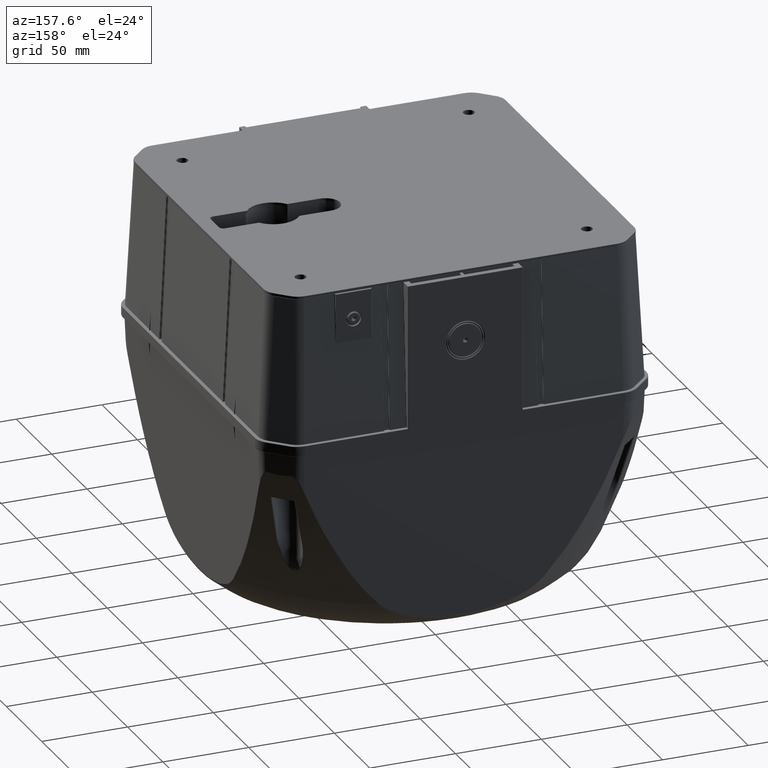
[diagram: clean part render]
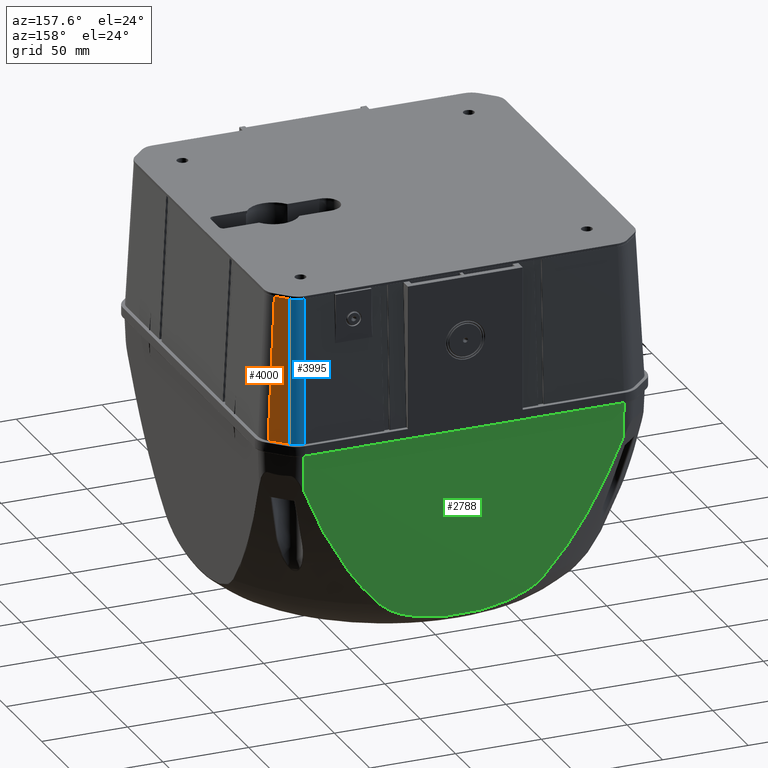
[diagram: same view with three faces highlighted in distinct colors, each labeled with its STEP entity id]
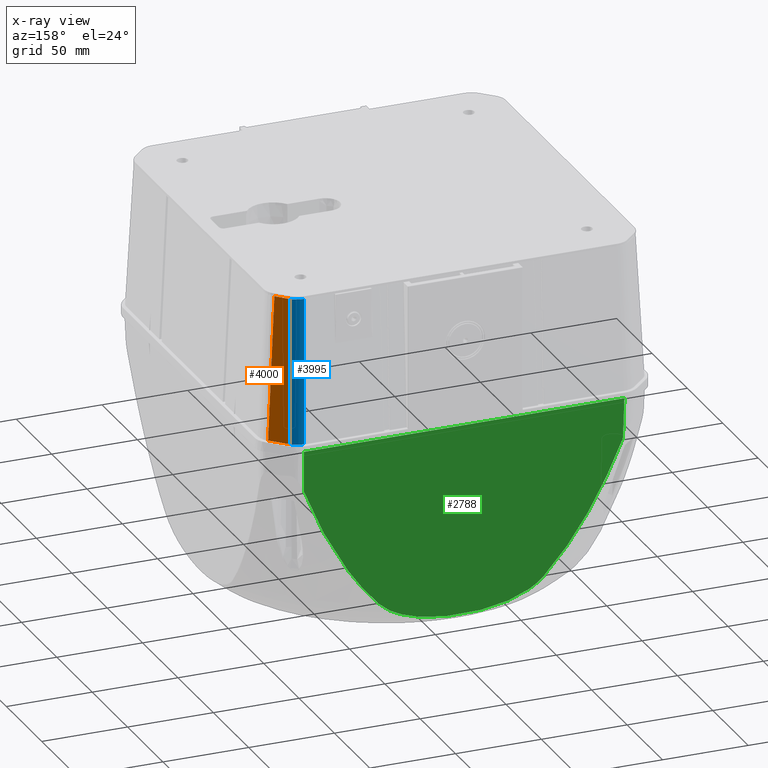
[diagram: x-ray of the same camera — body ghosted, the three highlighted faces saturated]
A machine part, auxiliary view with three faces highlighted in distinct colors.
The next image is the same camera in x-ray (body ghosted, the three faces saturated) — at least one of them is partly hidden behind the body in this view.
Their STEP definitions:

[orange] entity #4000 — the highlighted planar face has unit normal (0.7061, 0.7061, 0.0523).
#2599=FACE_OUTER_BOUND('',#6148,.T.);
#4000=ADVANCED_FACE('',(#2599),#4424,.T.);
#4424=PLANE('',#23827);
#6148=EDGE_LOOP('',(#14075,#14076,#14077,#14078));
#6780=LINE('',#38961,#8007);
#7159=LINE('',#43314,#8386);
#7480=LINE('',#46927,#8707);
#7481=LINE('',#46929,#8708);
#8007=VECTOR('',#26422,1.);
#8386=VECTOR('',#28217,1.);
#8707=VECTOR('',#29898,1.);
#8708=VECTOR('',#29901,1.);
#14075=ORIENTED_EDGE('',*,*,#19904,.T.);
#14076=ORIENTED_EDGE('',*,*,#18330,.T.);
#14077=ORIENTED_EDGE('',*,*,#19905,.T.);
#14078=ORIENTED_EDGE('',*,*,#19207,.T.);
#16120=VERTEX_POINT('',#38814);
#16129=VERTEX_POINT('',#38958);
#16614=VERTEX_POINT('',#43275);
#16618=VERTEX_POINT('',#43313);
#18330=EDGE_CURVE('',#16129,#16120,#6780,.T.);
#19207=EDGE_CURVE('',#16614,#16618,#7159,.T.);
#19904=EDGE_CURVE('',#16618,#16129,#7480,.T.);
#19905=EDGE_CURVE('',#16120,#16614,#7481,.T.);
#23827=AXIS2_PLACEMENT_3D('',#46939,#29915,#29916);
#26422=DIRECTION('',(0.707106781186548,-0.707106781186547,0.));
#28217=DIRECTION('',(-0.707106781186548,0.707106781186547,0.));
#29898=DIRECTION('',(0.0523236630107089,0.0216731708520751,-0.998394965909964));
#29901=DIRECTION('',(-0.021673170852075,-0.0523236630107089,0.998394965909964));
#29915=DIRECTION('',(-0.706137715918126,-0.706137715918127,-0.0523359562429438));
#29916=DIRECTION('',(0.707106781186548,-0.707106781186547,0.));
#38814=CARTESIAN_POINT('',(-326.875311403272,-104.86831466977,0.189532808751405));
#38958=CARTESIAN_POINT('',(-333.26831466977,-98.4753114032717,0.189532808751405));
#38961=CARTESIAN_POINT('',(-330.071813036521,-101.671813036521,0.189532808751405));
#43275=CARTESIAN_POINT('',(-328.689527134813,-109.248218893927,83.7630839890607));
#43313=CARTESIAN_POINT('',(-337.648218893927,-100.289527134813,83.7630839890607));
#43314=CARTESIAN_POINT('',(-333.16887301437,-104.76887301437,83.7630839890607));
#46927=CARTESIAN_POINT('',(-337.967744542376,-100.421878991926,89.859996562345));
#46929=CARTESIAN_POINT('',(-328.821878991926,-109.567744542376,89.859996562345));
#46939=CARTESIAN_POINT('',(-333.4,-105.,90.));

[blue] entity #3995 — the highlighted cylindrical surface (edge-blend (fillet) strip) has radius 10 mm, axis along (0.0217, 0.0523, -0.9984).
#615=CYLINDRICAL_SURFACE('',#23822,10.);
#1237=ELLIPSE('',#22439,10.0154400190644,10.);
#1436=ELLIPSE('',#23144,10.0168893122903,10.);
#2594=FACE_OUTER_BOUND('',#6143,.T.);
#3995=ADVANCED_FACE('',(#2594),#615,.T.);
#6143=EDGE_LOOP('',(#14055,#14056,#14057,#14058));
#7479=LINE('',#46926,#8706);
#7480=LINE('',#46927,#8707);
#8706=VECTOR('',#29897,1.);
#8707=VECTOR('',#29898,1.);
#14055=ORIENTED_EDGE('',*,*,#19903,.F.);
#14056=ORIENTED_EDGE('',*,*,#18336,.T.);
#14057=ORIENTED_EDGE('',*,*,#19904,.F.);
#14058=ORIENTED_EDGE('',*,*,#19210,.T.);
#16129=VERTEX_POINT('',#38958);
#16133=VERTEX_POINT('',#38970);
#16618=VERTEX_POINT('',#43313);
#16620=VERTEX_POINT('',#43319);
#18336=EDGE_CURVE('',#16133,#16129,#1237,.T.);
#19210=EDGE_CURVE('',#16618,#16620,#1436,.T.);
#19903=EDGE_CURVE('',#16133,#16620,#7479,.T.);
#19904=EDGE_CURVE('',#16618,#16129,#7480,.T.);
#22439=AXIS2_PLACEMENT_3D('',#38973,#26435,#26436);
#23144=AXIS2_PLACEMENT_3D('',#43320,#28223,#28224);
#23822=AXIS2_PLACEMENT_3D('',#46928,#29899,#29900);
#26435=DIRECTION('',(-0.00104485999439089,-0.000432795180457782,0.999999360477757));
#26436=DIRECTION('',(-0.923878941669776,-0.382683187630523,-0.00113094830832625));
#28223=DIRECTION('',(-0.0013058860235804,-0.000540915701880473,-0.999999001035449));
#28224=DIRECTION('',(-0.923878609588385,-0.382683050077906,0.00141348084639427));
#29897=DIRECTION('',(-0.0523236630107089,-0.0216731708520751,0.998394965909964));
#29898=DIRECTION('',(0.0523236630107089,0.0216731708520751,-0.998394965909964));
#29899=DIRECTION('',(-0.0523236630107089,-0.0216731708520751,0.998394965909964));
#29900=DIRECTION('',(0.998629534754575,0.,0.0523359562429437));
#38958=CARTESIAN_POINT('',(-333.26831466977,-98.4753114032717,0.189532808751405));
#38970=CARTESIAN_POINT('',(-336.193232858134,-91.4139342440904,0.189532808751391));
#38973=CARTESIAN_POINT('',(-326.180057960404,-91.4028003698534,0.200000000000006));
#43313=CARTESIAN_POINT('',(-337.648218893927,-100.289527134813,83.7630839890607));
#43319=CARTESIAN_POINT('',(-340.573137082292,-93.2281499756317,83.7630839890607));
#43320=CARTESIAN_POINT('',(-330.558727919502,-93.2165048520674,83.75));
#46926=CARTESIAN_POINT('',(-340.794123906328,-93.3196857152532,87.979763784682));
#46927=CARTESIAN_POINT('',(-337.967744542376,-100.421878991926,89.859996562345));
#46928=CARTESIAN_POINT('',(-330.807828558782,-93.3196857152532,88.5031233471115));

[green] entity #2788 — the highlighted planar face has unit normal (0, 0.999, -0.0436).
#1469=FACE_OUTER_BOUND('',#4856,.T.);
#2788=ADVANCED_FACE('',(#1469),#4230,.T.);
#4230=PLANE('',#21497);
#4856=EDGE_LOOP('',(#9315,#9316,#9317,#9318,#9319,#9320));
#6466=LINE('',#31110,#7693);
#6467=LINE('',#31113,#7694);
#6468=LINE('',#31115,#7695);
#7693=VECTOR('',#24234,1.);
#7694=VECTOR('',#24235,1.);
#7695=VECTOR('',#24236,1.);
#8906=B_SPLINE_CURVE_WITH_KNOTS('',3,(#31117,#31118,#31119,#31120,#31121,
#31122,#31123,#31124,#31125,#31126,#31127,#31128,#31129,#31130,#31131,#31132),
 .UNSPECIFIED.,.F.,.F.,(4,2,2,2,2,2,2,4),(0.,0.25,0.500000000000001,0.625000000000001,
0.750000000000001,0.812500000000001,0.875000000000001,1.),.UNSPECIFIED.);
#8907=B_SPLINE_CURVE_WITH_KNOTS('',3,(#31134,#31135,#31136,#31137,#31138,
#31139,#31140,#31141,#31142,#31143,#31144,#31145,#31146,#31147,#31148,#31149,
#31150,#31151,#31152,#31153,#31154,#31155,#31156,#31157,#31158,#31159,#31160,
#31161,#31162,#31163,#31164,#31165,#31166,#31167,#31168,#31169,#31170,#31171,
#31172,#31173),.UNSPECIFIED.,.F.,.F.,(4,2,2,2,2,2,2,2,2,2,2,2,2,2,2,2,2,
2,2,4),(0.,0.0625000000000001,0.125,0.15625,0.1875,0.25,0.3125,0.34375,0.375,
0.4375,0.5,0.5625,0.625,0.6875,0.75,0.8125,0.875,0.90625,0.9375,1.),.UNSPECIFIED.);
#8908=B_SPLINE_CURVE_WITH_KNOTS('',3,(#31175,#31176,#31177,#31178,#31179,
#31180,#31181,#31182,#31183,#31184,#31185,#31186,#31187,#31188,#31189,#31190),
 .UNSPECIFIED.,.F.,.F.,(4,2,2,2,2,2,2,4),(0.,0.125,0.25,0.375,0.5,0.625,
0.75,1.),.UNSPECIFIED.);
#9315=ORIENTED_EDGE('',*,*,#17264,.T.);
#9316=ORIENTED_EDGE('',*,*,#17265,.T.);
#9317=ORIENTED_EDGE('',*,*,#17266,.T.);
#9318=ORIENTED_EDGE('',*,*,#17267,.T.);
#9319=ORIENTED_EDGE('',*,*,#17268,.T.);
#9320=ORIENTED_EDGE('',*,*,#17269,.T.);
#15473=VERTEX_POINT('',#31111);
#15474=VERTEX_POINT('',#31112);
#15475=VERTEX_POINT('',#31114);
#15476=VERTEX_POINT('',#31116);
#15477=VERTEX_POINT('',#31133);
#15478=VERTEX_POINT('',#31174);
#17264=EDGE_CURVE('',#15473,#15474,#6466,.T.);
#17265=EDGE_CURVE('',#15474,#15475,#6467,.T.);
#17266=EDGE_CURVE('',#15475,#15476,#6468,.T.);
#17267=EDGE_CURVE('',#15476,#15477,#8906,.T.);
#17268=EDGE_CURVE('',#15477,#15478,#8907,.T.);
#17269=EDGE_CURVE('',#15478,#15473,#8908,.T.);
#21497=AXIS2_PLACEMENT_3D('',#31191,#24237,#24238);
#24234=DIRECTION('',(-0.0436122694797137,0.0180647935043676,-0.998885195198364));
#24235=DIRECTION('',(1.1049345174485E-016,-1.,-2.94649204652927E-016));
#24236=DIRECTION('',(0.0436122694797137,0.0180647935043676,0.998885195198364));
#24237=DIRECTION('',(-0.999048221581858,-1.23240704256777E-016,0.043619387365336));
#24238=DIRECTION('',(0.043619387365336,0.,0.999048221581858));
#31110=CARTESIAN_POINT('',(-340.903260261641,93.3631572161492,89.1253277317557));
#31111=CARTESIAN_POINT('',(-339.89924122237,92.9472789132023,112.121144413379));
#31112=CARTESIAN_POINT('',(-340.946923152946,93.3723822039676,88.1251932025113));
#31113=CARTESIAN_POINT('',(-340.946929202835,-7.11830372997009E-014,88.1251445408932));
#31114=CARTESIAN_POINT('',(-340.94692292548,-93.3723821096888,88.1251984123264));
#31115=CARTESIAN_POINT('',(-340.362453506361,-93.1391477234896,101.511838861684));
#31116=CARTESIAN_POINT('',(-339.89924122237,-92.9472789132025,112.121144413379));
#31117=CARTESIAN_POINT('',(-339.89924122237,-92.9472789132025,112.121144413379));
#31118=CARTESIAN_POINT('',(-339.599000147905,-90.259399345371,118.997795590927));
#31119=CARTESIAN_POINT('',(-339.30398885532,-87.3569871596256,125.754665070424));
#31120=CARTESIAN_POINT('',(-338.725648176197,-81.0729554437888,139.000844392184));
#31121=CARTESIAN_POINT('',(-338.442295286538,-77.6923000429925,145.490692544403));
#31122=CARTESIAN_POINT('',(-338.027723054926,-72.1923526546859,154.985957740127));
#31123=CARTESIAN_POINT('',(-337.891285201999,-70.2871309375533,158.110898335516));
#31124=CARTESIAN_POINT('',(-337.622389087864,-66.3134393507308,164.269631890531));
#31125=CARTESIAN_POINT('',(-337.489927533544,-64.2451045689544,167.303500274864));
#31126=CARTESIAN_POINT('',(-337.294729838752,-60.999247745086,171.774262511988));
#31127=CARTESIAN_POINT('',(-337.230248306574,-59.8933239953274,173.251132407195));
#31128=CARTESIAN_POINT('',(-337.102569909403,-57.6287777369345,176.175448481606));
#31129=CARTESIAN_POINT('',(-337.039306510832,-56.4688941816599,177.624418530258));
#31130=CARTESIAN_POINT('',(-336.852139014911,-52.9105405974089,181.911258975125));
#31131=CARTESIAN_POINT('',(-336.73115470018,-50.4404335498183,184.682255354757));
#31132=CARTESIAN_POINT('',(-336.614819399235,-47.8503994507775,187.346771812602));
#31133=CARTESIAN_POINT('',(-336.614819399235,-47.8503994507774,187.346771812602));
#31134=CARTESIAN_POINT('',(-336.614819399235,-47.8503994507774,187.346771812602));
#31135=CARTESIAN_POINT('',(-336.546855755252,-46.3372890364596,188.903395180218));
#31136=CARTESIAN_POINT('',(-336.488096355642,-44.6825387209352,190.249206692653));
#31137=CARTESIAN_POINT('',(-336.383393816497,-41.1758145333086,192.647289101547));
#31138=CARTESIAN_POINT('',(-336.337541210831,-39.322447476967,193.697486431506));
#31139=CARTESIAN_POINT('',(-336.276378750283,-36.4251908632022,195.098337088271));
#31140=CARTESIAN_POINT('',(-336.257248089191,-35.437751966743,195.536501264701));
#31141=CARTESIAN_POINT('',(-336.221747852733,-33.4533838654618,196.349590357445));
#31142=CARTESIAN_POINT('',(-336.205307572217,-32.4533764913775,196.726134687937));
#31143=CARTESIAN_POINT('',(-336.15940658063,-29.4329284857367,197.777440237679));
#31144=CARTESIAN_POINT('',(-336.133340770127,-27.3922109871002,198.374445450272));
#31145=CARTESIAN_POINT('',(-336.088420312545,-23.2677055671938,199.403293079061));
#31146=CARTESIAN_POINT('',(-336.069577495348,-21.1838469890834,199.834864546411));
#31147=CARTESIAN_POINT('',(-336.045867985299,-18.0308549773668,200.377901605842));
#31148=CARTESIAN_POINT('',(-336.038728253981,-16.9752978173307,200.541428338037));
#31149=CARTESIAN_POINT('',(-336.025875397925,-14.8556627434277,200.83580713977));
#31150=CARTESIAN_POINT('',(-336.020158951289,-13.7904918549232,200.966735293285));
#31151=CARTESIAN_POINT('',(-336.005114318098,-10.6015155023864,201.311314044663));
#31152=CARTESIAN_POINT('',(-335.997838125312,-8.47869415229776,201.477966258304));
#31153=CARTESIAN_POINT('',(-335.988199704369,-4.23869588681379,201.698722391843));
#31154=CARTESIAN_POINT('',(-335.985839908289,-2.12152176502885,201.752770608008));
#31155=CARTESIAN_POINT('',(-335.985829373285,2.10741741119839,201.75301189926));
#31156=CARTESIAN_POINT('',(-335.988179080524,4.21918195315602,201.69919475556));
#31157=CARTESIAN_POINT('',(-335.997720291099,8.4371494988945,201.48066510549));
#31158=CARTESIAN_POINT('',(-336.004910471768,10.5433540219611,201.315982893211));
#31159=CARTESIAN_POINT('',(-336.024616077838,14.7496462157349,200.86465031178));
#31160=CARTESIAN_POINT('',(-336.037127565235,16.8497384098401,200.578090137795));
#31161=CARTESIAN_POINT('',(-336.068384231436,21.0427624567121,199.862194783286));
#31162=CARTESIAN_POINT('',(-336.087120043268,23.1357050688711,199.433074141736));
#31163=CARTESIAN_POINT('',(-336.132344074934,27.3126854751844,198.397273523296));
#31164=CARTESIAN_POINT('',(-336.158555125415,29.3706416232251,197.796941768303));
#31165=CARTESIAN_POINT('',(-336.219738659974,33.4090779386026,196.395608437341));
#31166=CARTESIAN_POINT('',(-336.254693881259,35.3901648334007,195.595002244336));
#31167=CARTESIAN_POINT('',(-336.315616953941,38.2876008328152,194.199634471144));
#31168=CARTESIAN_POINT('',(-336.337396548696,39.2428576149346,193.700799739134));
#31169=CARTESIAN_POINT('',(-336.384092818594,41.1157554902547,192.631279321409));
#31170=CARTESIAN_POINT('',(-336.408861736435,42.027729658256,192.063977834275));
#31171=CARTESIAN_POINT('',(-336.487980607149,44.6807574002577,190.251857768996));
#31172=CARTESIAN_POINT('',(-336.547022121496,46.3409929358133,188.89958476676));
#31173=CARTESIAN_POINT('',(-336.614819399235,47.850399450777,187.346771812603));
#31174=CARTESIAN_POINT('',(-336.614819399235,47.850399450777,187.346771812603));
#31175=CARTESIAN_POINT('',(-336.614819399235,47.8503994507771,187.346771812603));
#31176=CARTESIAN_POINT('',(-336.731113580234,50.4395180748056,184.683197156349));
#31177=CARTESIAN_POINT('',(-336.85139334092,52.8944565872404,181.928337717383));
#31178=CARTESIAN_POINT('',(-337.098268069268,57.5917233412078,176.273976819475));
#31179=CARTESIAN_POINT('',(-337.224874567427,59.833663392425,173.374211268722));
#31180=CARTESIAN_POINT('',(-337.483366428534,64.1398231324369,167.453774285751));
#31181=CARTESIAN_POINT('',(-337.615257549671,66.2038489637399,164.432970969315));
#31182=CARTESIAN_POINT('',(-337.883617290515,70.1777927380794,158.286522382391));
#31183=CARTESIAN_POINT('',(-338.020089057731,72.0876047158349,155.160805022101));
#31184=CARTESIAN_POINT('',(-338.297120091189,75.7696173026747,148.815751182123));
#31185=CARTESIAN_POINT('',(-338.437681198085,77.5417559436,145.59637254455));
#31186=CARTESIAN_POINT('',(-338.72254167927,80.9601792279561,139.071994869492));
#31187=CARTESIAN_POINT('',(-338.866928951207,82.6071922566523,135.764982644863));
#31188=CARTESIAN_POINT('',(-339.30330572932,87.351276643362,125.770311228189));
#31189=CARTESIAN_POINT('',(-339.599123529052,90.2605039033168,118.994969698059));
#31190=CARTESIAN_POINT('',(-339.89924122237,92.9472789132022,112.121144413379));
#31191=CARTESIAN_POINT('',(-340.9,-7.14945572362347E-014,89.2));